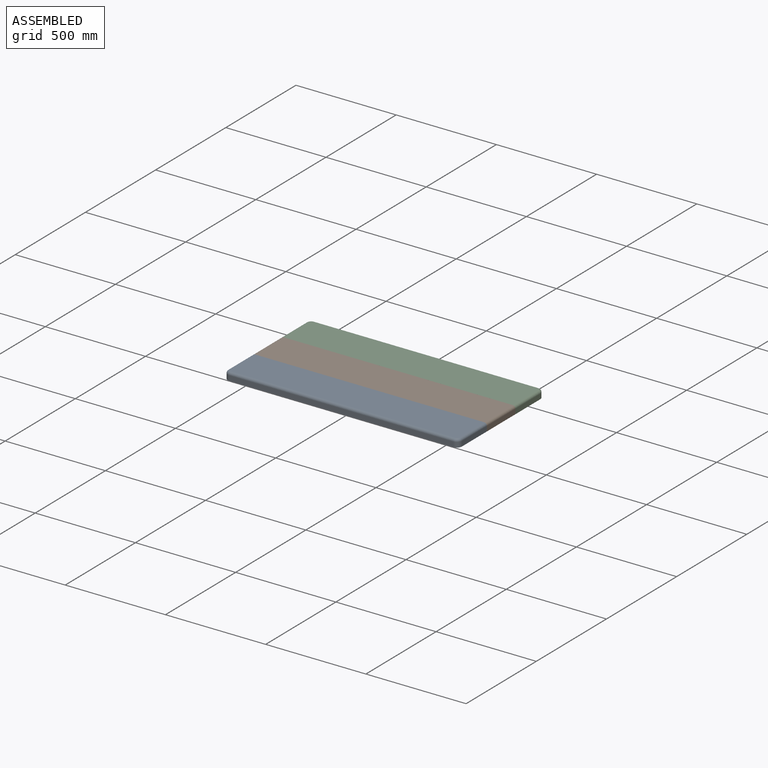
[diagram: assembled view]
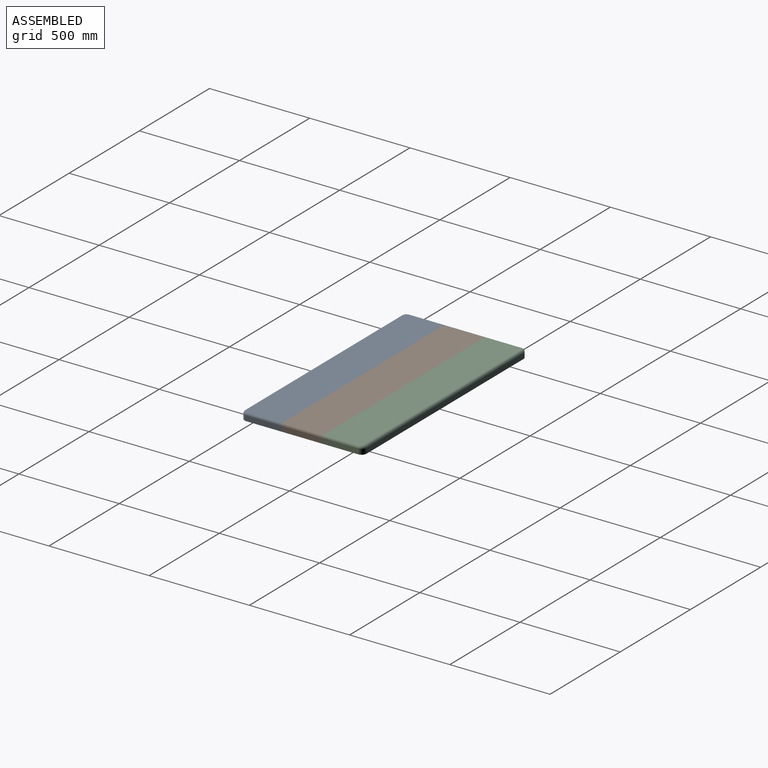
[diagram: assembled view, second angle]
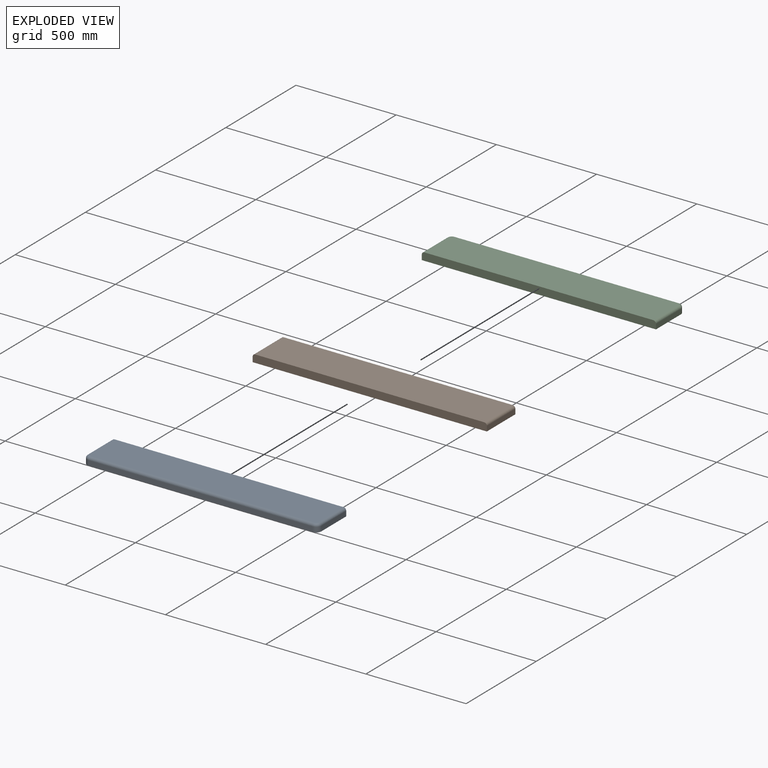
[diagram: exploded view]
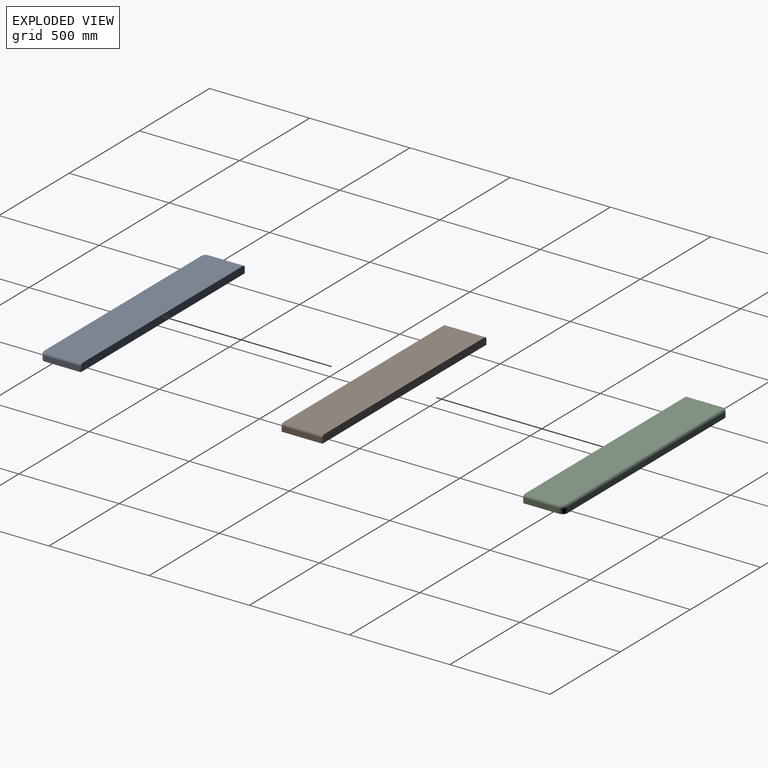
[diagram: exploded view, second angle]
ASSEMBLY  parts=3 mates=2
PART A: 13 faces, bbox 1172.6x205.3x38.1 mm
  f0: plane 1143x190.5mm, normal (0,0,1), area 217672.3mm2, adj f3,f6,f7,f8,f10,f12
  f1: plane 1117.6x25.4mm, normal (0,-1,0), area 28387mm2, adj f5,f7,f9,f11
  f2: plane 177.8x25.4mm, normal (1,0,0), area 4516.1mm2, adj f3,f5,f8,f9
  f3: plane 1168.4x38.1mm, normal (0,1,0), area 44446.8mm2, adj f0,f2,f4,f5,f6,f8
  f4: plane 177.8x25.4mm, normal (-1,0,0), area 4516.1mm2, adj f3,f5,f6,f11
  f5: plane 1168.4x203.2mm, normal (0,0,-1), area 237142mm2, adj f1,f2,f3,f4,f9,f11
  f6: cylinder r=12.7mm len=177.8mm, axis (0,1,0), area 3547mm2, adj f0,f3,f4,f12
  f7: cylinder r=12.7mm len=1117.6mm, axis (-1,0,0), area 22295.1mm2, adj f0,f1,f10,f12
  f8: cylinder r=12.7mm len=177.8mm, axis (0,-1,0), area 3547mm2, adj f0,f2,f3,f10
  f9: cylinder r=25.4mm len=25.4mm, axis (0,0,1), area 1013.4mm2, adj f1,f2,f5,f10
  f10: torus R=12.7mm, axis (0,0,1), area 651.3mm2, adj f0,f7,f8,f9
  f11: cylinder r=25.4mm len=25.4mm, axis (0,0,-1), area 1013.4mm2, adj f1,f4,f5,f12
  f12: torus R=12.7mm, axis (0,0,1), area 651.3mm2, adj f0,f6,f7,f11
PART B: 8 faces, bbox 1168.4x203.2x38.1 mm
  f0: plane 1168.4x38.1mm, normal (0,-1,0), area 44446.8mm2, adj f1,f3,f4,f5,f6,f7
  f1: plane 203.2x25.4mm, normal (1,0,0), area 5161.3mm2, adj f0,f2,f5,f6
  f2: plane 1168.4x38.1mm, normal (0,1,0), area 44446.8mm2, adj f1,f3,f4,f5,f6,f7
  f3: plane 203.2x25.4mm, normal (-1,0,0), area 5161.3mm2, adj f0,f2,f5,f7
  f4: plane 1143x203.2mm, normal (0,0,1), area 232257.6mm2, adj f0,f2,f6,f7
  f5: plane 1168.4x203.2mm, normal (0,0,-1), area 237418.9mm2, adj f0,f1,f2,f3
  f6: cylinder r=12.7mm len=203.2mm, axis (0,-1,0), area 4053.7mm2, adj f0,f1,f2,f4
  f7: cylinder r=12.7mm len=203.2mm, axis (0,1,0), area 4053.7mm2, adj f0,f2,f3,f4
PART C: 13 faces, bbox 1172.6x205.3x38.1 mm
  f0: plane 1143x190.5mm, normal (0,0,1), area 217672.3mm2, adj f1,f6,f7,f8,f10,f12
  f1: plane 1168.4x38.1mm, normal (0,-1,0), area 44446.8mm2, adj f0,f2,f4,f5,f6,f7
  f2: plane 177.8x25.4mm, normal (1,0,0), area 4516.1mm2, adj f1,f5,f6,f11
  f3: plane 1117.6x25.4mm, normal (0,1,0), area 28387mm2, adj f5,f8,f9,f11
  f4: plane 177.8x25.4mm, normal (-1,0,0), area 4516.1mm2, adj f1,f5,f7,f9
  f5: plane 1168.4x203.2mm, normal (0,0,-1), area 237142mm2, adj f1,f2,f3,f4,f9,f11
  f6: cylinder r=12.7mm len=177.8mm, axis (0,-1,0), area 3547mm2, adj f0,f1,f2,f12
  f7: cylinder r=12.7mm len=177.8mm, axis (0,1,0), area 3547mm2, adj f0,f1,f4,f10
  f8: cylinder r=12.7mm len=1117.6mm, axis (1,0,0), area 22295.1mm2, adj f0,f3,f10,f12
  f9: cylinder r=25.4mm len=25.4mm, axis (0,0,1), area 1013.4mm2, adj f3,f4,f5,f10
  f10: torus R=12.7mm, axis (0,0,1), area 651.3mm2, adj f0,f7,f8,f9
  f11: cylinder r=25.4mm len=25.4mm, axis (0,0,-1), area 1013.4mm2, adj f2,f3,f5,f12
  f12: torus R=12.7mm, axis (0,0,1), area 651.3mm2, adj f0,f6,f8,f11
PLACE A t=(0,-431.8,0)mm
PLACE B t=(0,-228.6,0)mm
PLACE C t=(0,-25.4,0)mm
MATE fastened C.f1 <-> B.f2  axis (0,-1,0) through (0,-127,19.02)mm
MATE fastened A.f3 <-> B.f0  axis (0,1,0) through (0,-330.2,19.02)mm
